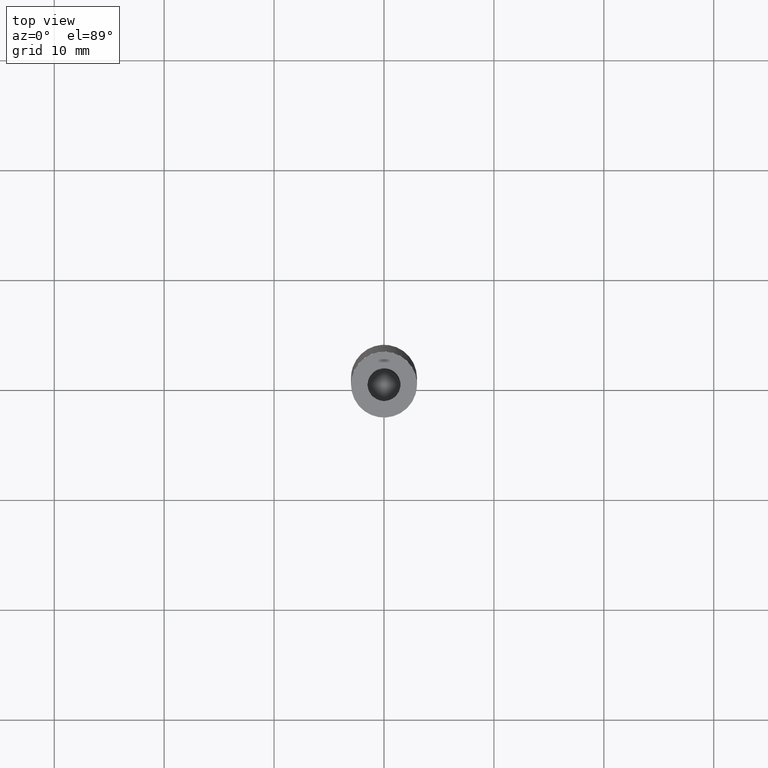
[diagram: clean part render]
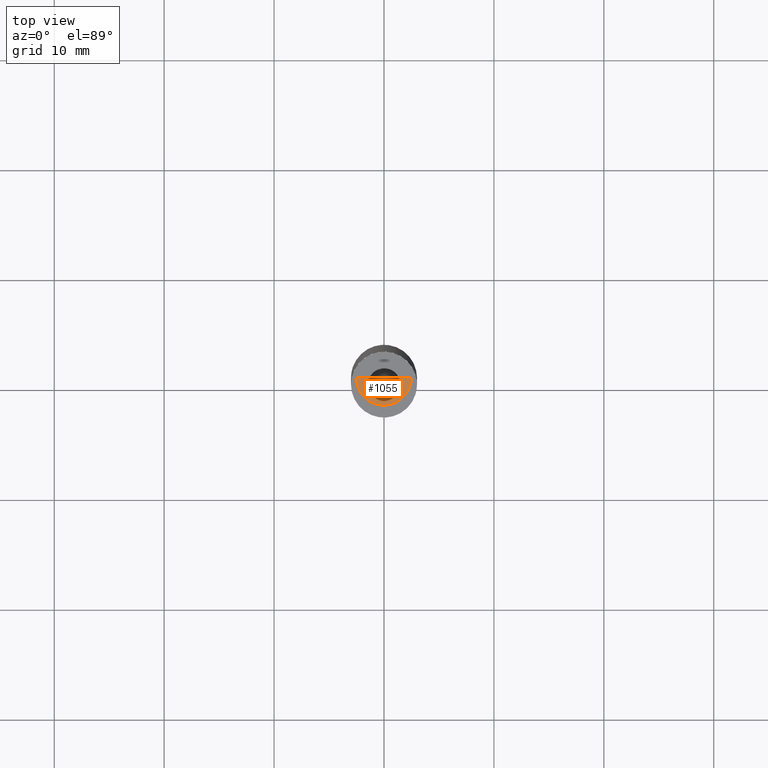
[diagram: same view with one face highlighted and labeled with its STEP entity id]
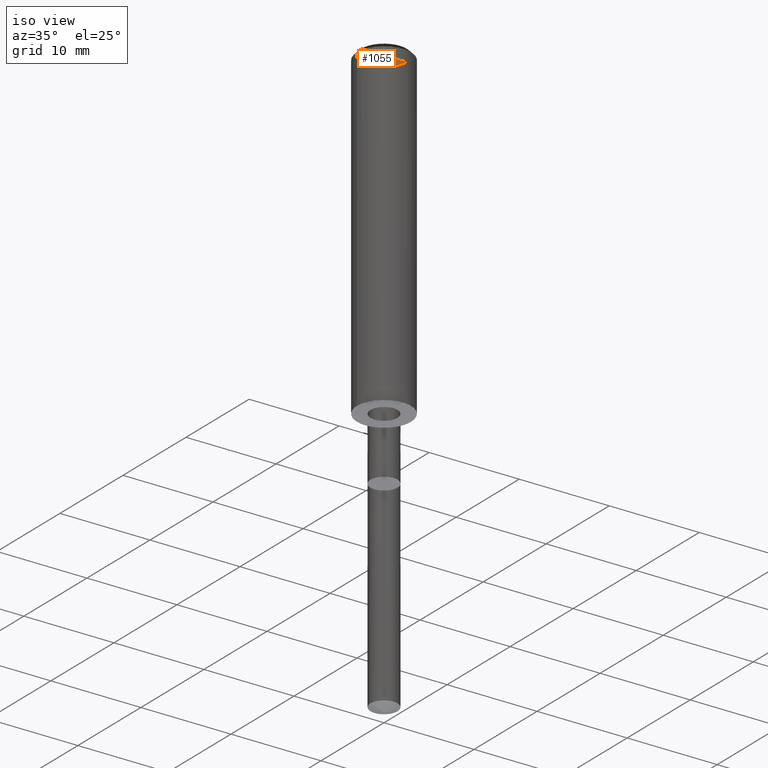
[diagram: same view with one face highlighted and labeled with its STEP entity id]
A machine part, top view. The second image highlights one B-rep face of the part: STEP entity #1055.
A second angle (iso view) of the same face is appended — the face is thin or edge-on in the first view.
In plain terms, the highlighted face is a freeform B-spline surface patch.
Its self-contained STEP definition (entity closure, byte-faithful):
#658=CARTESIAN_POINT('',(2.5,0.0,36.0));
#662=CARTESIAN_POINT('',(-2.5,0.0,36.0));
#663=CARTESIAN_POINT('',(0.0,0.0,36.0));
#676=CARTESIAN_POINT('',(-2.5,-2.5,36.0));
#677=CARTESIAN_POINT('',(0.0,-2.5,36.0));
#678=CARTESIAN_POINT('',(2.5,-2.5,36.0));
#1040=(
BOUNDED_SURFACE()
B_SPLINE_SURFACE(1,2,(
(#662,#676,#677,#678,#658),
(#663,#663,#663,#663,#663)
), .UNSPECIFIED.,.F.,.F.,.F.)
B_SPLINE_SURFACE_WITH_KNOTS((2,2),(3,2,3),(
0.0,1.0),(
0.0,0.5,1.0), .UNSPECIFIED.)
GEOMETRIC_REPRESENTATION_ITEM()
RATIONAL_B_SPLINE_SURFACE(((1.0,0.707106781187,1.0,0.707106781187,1.0),
(1.0,0.707106781187,1.0,0.707106781187,1.0)
))
REPRESENTATION_ITEM('')
SURFACE()
);
#1041=(
BOUNDED_CURVE()
B_SPLINE_CURVE(2,(#658,#678,#677,#676,#662),.UNSPECIFIED.,.F.,.F.)
B_SPLINE_CURVE_WITH_KNOTS((3,2,3),
(0.0,0.5,1.0),.UNSPECIFIED.)
CURVE()
GEOMETRIC_REPRESENTATION_ITEM()
RATIONAL_B_SPLINE_CURVE((1.0,0.707106781187,1.0,0.707106781187,1.0))
REPRESENTATION_ITEM('')
);
#1042=(
BOUNDED_CURVE()
B_SPLINE_CURVE(1,(#662,#663),.UNSPECIFIED.,.F.,.F.)
B_SPLINE_CURVE_WITH_KNOTS((2,2),
(0.0,1.0),.UNSPECIFIED.)
CURVE()
GEOMETRIC_REPRESENTATION_ITEM()
RATIONAL_B_SPLINE_CURVE((1.0,1.0))
REPRESENTATION_ITEM('')
);
#1043=(
BOUNDED_CURVE()
B_SPLINE_CURVE(1,(#663,#658),.UNSPECIFIED.,.F.,.F.)
B_SPLINE_CURVE_WITH_KNOTS((2,2),
(0.0,1.0),.UNSPECIFIED.)
CURVE()
GEOMETRIC_REPRESENTATION_ITEM()
RATIONAL_B_SPLINE_CURVE((1.0,1.0))
REPRESENTATION_ITEM('')
);
#1044=VERTEX_POINT('',#658);
#1045=VERTEX_POINT('',#662);
#1046=VERTEX_POINT('',#663);
#1047=EDGE_CURVE('',#1044,#1045,#1041,.T.);
#1048=EDGE_CURVE('',#1045,#1046,#1042,.T.);
#1049=EDGE_CURVE('',#1046,#1044,#1043,.T.);
#1050=ORIENTED_EDGE('',*,*,#1047,.T.);
#1051=ORIENTED_EDGE('',*,*,#1048,.T.);
#1052=ORIENTED_EDGE('',*,*,#1049,.T.);
#1053=EDGE_LOOP('',(#1050,#1051,#1052));
#1054=FACE_OUTER_BOUND('',#1053,.T.);
#1055=ADVANCED_FACE('',(#1054),#1040,.T.);